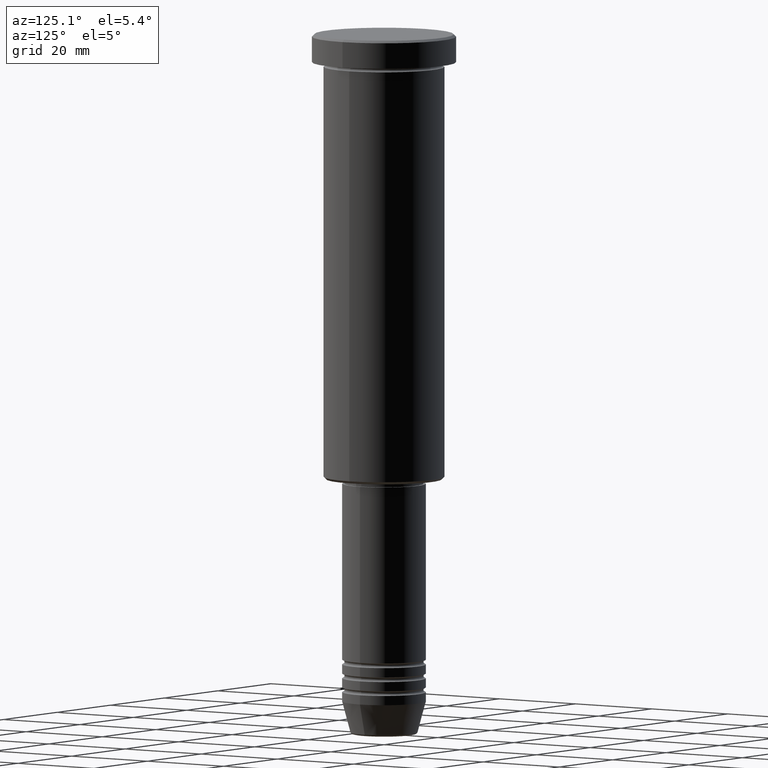
[diagram: clean part render]
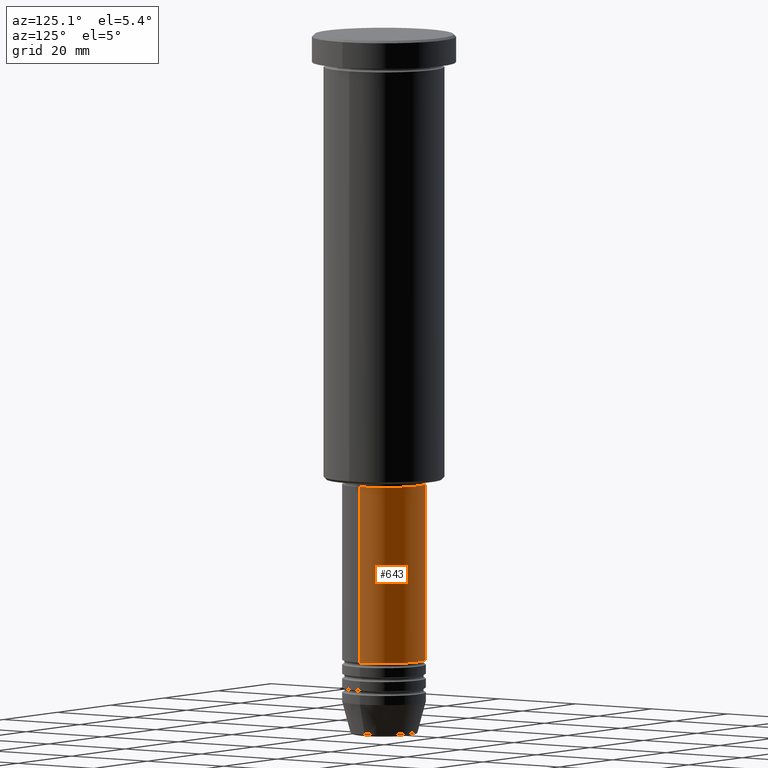
[diagram: same view with one face highlighted and labeled with its STEP entity id]
A machine part, auxiliary view. The second image highlights one B-rep face of the part: STEP entity #643.
In plain terms, the highlighted cylindrical surface (partial cylindrical patch) has radius 9 mm, axis along (-0, -0, 1).
Its self-contained STEP definition (entity closure, byte-faithful):
#30 = DIRECTION ( 'NONE',  ( -0.000000000000000000, -0.000000000000000000, 1.000000000000000000 ) ) ;
#32 = VECTOR ( 'NONE', #715, 1000.000000000000000 ) ;
#59 = DIRECTION ( 'NONE',  ( 1.000000000000000000, 0.000000000000000000, 0.000000000000000000 ) ) ;
#71 = AXIS2_PLACEMENT_3D ( 'NONE', #305, #30, #212 ) ;
#75 = ORIENTED_EDGE ( 'NONE', *, *, #688, .F. ) ;
#104 = ORIENTED_EDGE ( 'NONE', *, *, #708, .F. ) ;
#191 = VERTEX_POINT ( 'NONE', #487 ) ;
#212 = DIRECTION ( 'NONE',  ( 1.000000000000000000, 0.000000000000000000, 0.000000000000000000 ) ) ;
#305 = CARTESIAN_POINT ( 'NONE',  ( 0.000000000000000000, 0.000000000000000000, 0.000000000000000000 ) ) ;
#361 = CIRCLE ( 'NONE', #1081, 9.000000000000000000 ) ;
#391 = CIRCLE ( 'NONE', #459, 9.000000000000000000 ) ;
#438 = CARTESIAN_POINT ( 'NONE',  ( -9.000000000000000000, 1.102182119232617714E-15, 0.000000000000000000 ) ) ;
#439 = EDGE_CURVE ( 'NONE', #191, #552, #1149, .T. ) ;
#459 = AXIS2_PLACEMENT_3D ( 'NONE', #1051, #1153, #790 ) ;
#478 = VERTEX_POINT ( 'NONE', #629 ) ;
#484 = FACE_OUTER_BOUND ( 'NONE', #887, .T. ) ;
#487 = CARTESIAN_POINT ( 'NONE',  ( -9.000000000000000000, 1.102182119232617714E-15, -134.9999999999999716 ) ) ;
#529 = CARTESIAN_POINT ( 'NONE',  ( 0.000000000000000000, 0.000000000000000000, -97.00000000000000000 ) ) ;
#552 = VERTEX_POINT ( 'NONE', #1014 ) ;
#629 = CARTESIAN_POINT ( 'NONE',  ( 9.000000000000000000, 0.000000000000000000, -97.00000000000000000 ) ) ;
#633 = DIRECTION ( 'NONE',  ( -0.000000000000000000, -0.000000000000000000, 1.000000000000000000 ) ) ;
#643 = ADVANCED_FACE ( 'NONE', ( #484 ), #1036, .T. ) ;
#688 = EDGE_CURVE ( 'NONE', #1055, #478, #696, .T. ) ;
#696 = LINE ( 'NONE', #1046, #32 ) ;
#708 = EDGE_CURVE ( 'NONE', #478, #552, #361, .T. ) ;
#715 = DIRECTION ( 'NONE',  ( -0.000000000000000000, -0.000000000000000000, 1.000000000000000000 ) ) ;
#737 = VECTOR ( 'NONE', #811, 1000.000000000000000 ) ;
#745 = CARTESIAN_POINT ( 'NONE',  ( 9.000000000000000000, 0.000000000000000000, -134.9999999999999716 ) ) ;
#790 = DIRECTION ( 'NONE',  ( 1.000000000000000000, 0.000000000000000000, 0.000000000000000000 ) ) ;
#811 = DIRECTION ( 'NONE',  ( -0.000000000000000000, -0.000000000000000000, 1.000000000000000000 ) ) ;
#887 = EDGE_LOOP ( 'NONE', ( #1060, #1174, #104, #75 ) ) ;
#934 = EDGE_CURVE ( 'NONE', #1055, #191, #391, .T. ) ;
#1014 = CARTESIAN_POINT ( 'NONE',  ( -9.000000000000000000, 1.102182119232617714E-15, -97.00000000000000000 ) ) ;
#1036 = CYLINDRICAL_SURFACE ( 'NONE', #71, 9.000000000000000000 ) ;
#1046 = CARTESIAN_POINT ( 'NONE',  ( 9.000000000000000000, 0.000000000000000000, 0.000000000000000000 ) ) ;
#1051 = CARTESIAN_POINT ( 'NONE',  ( 0.000000000000000000, 0.000000000000000000, -134.9999999999999716 ) ) ;
#1055 = VERTEX_POINT ( 'NONE', #745 ) ;
#1060 = ORIENTED_EDGE ( 'NONE', *, *, #934, .T. ) ;
#1081 = AXIS2_PLACEMENT_3D ( 'NONE', #529, #633, #59 ) ;
#1149 = LINE ( 'NONE', #438, #737 ) ;
#1153 = DIRECTION ( 'NONE',  ( -0.000000000000000000, -0.000000000000000000, 1.000000000000000000 ) ) ;
#1174 = ORIENTED_EDGE ( 'NONE', *, *, #439, .T. ) ;